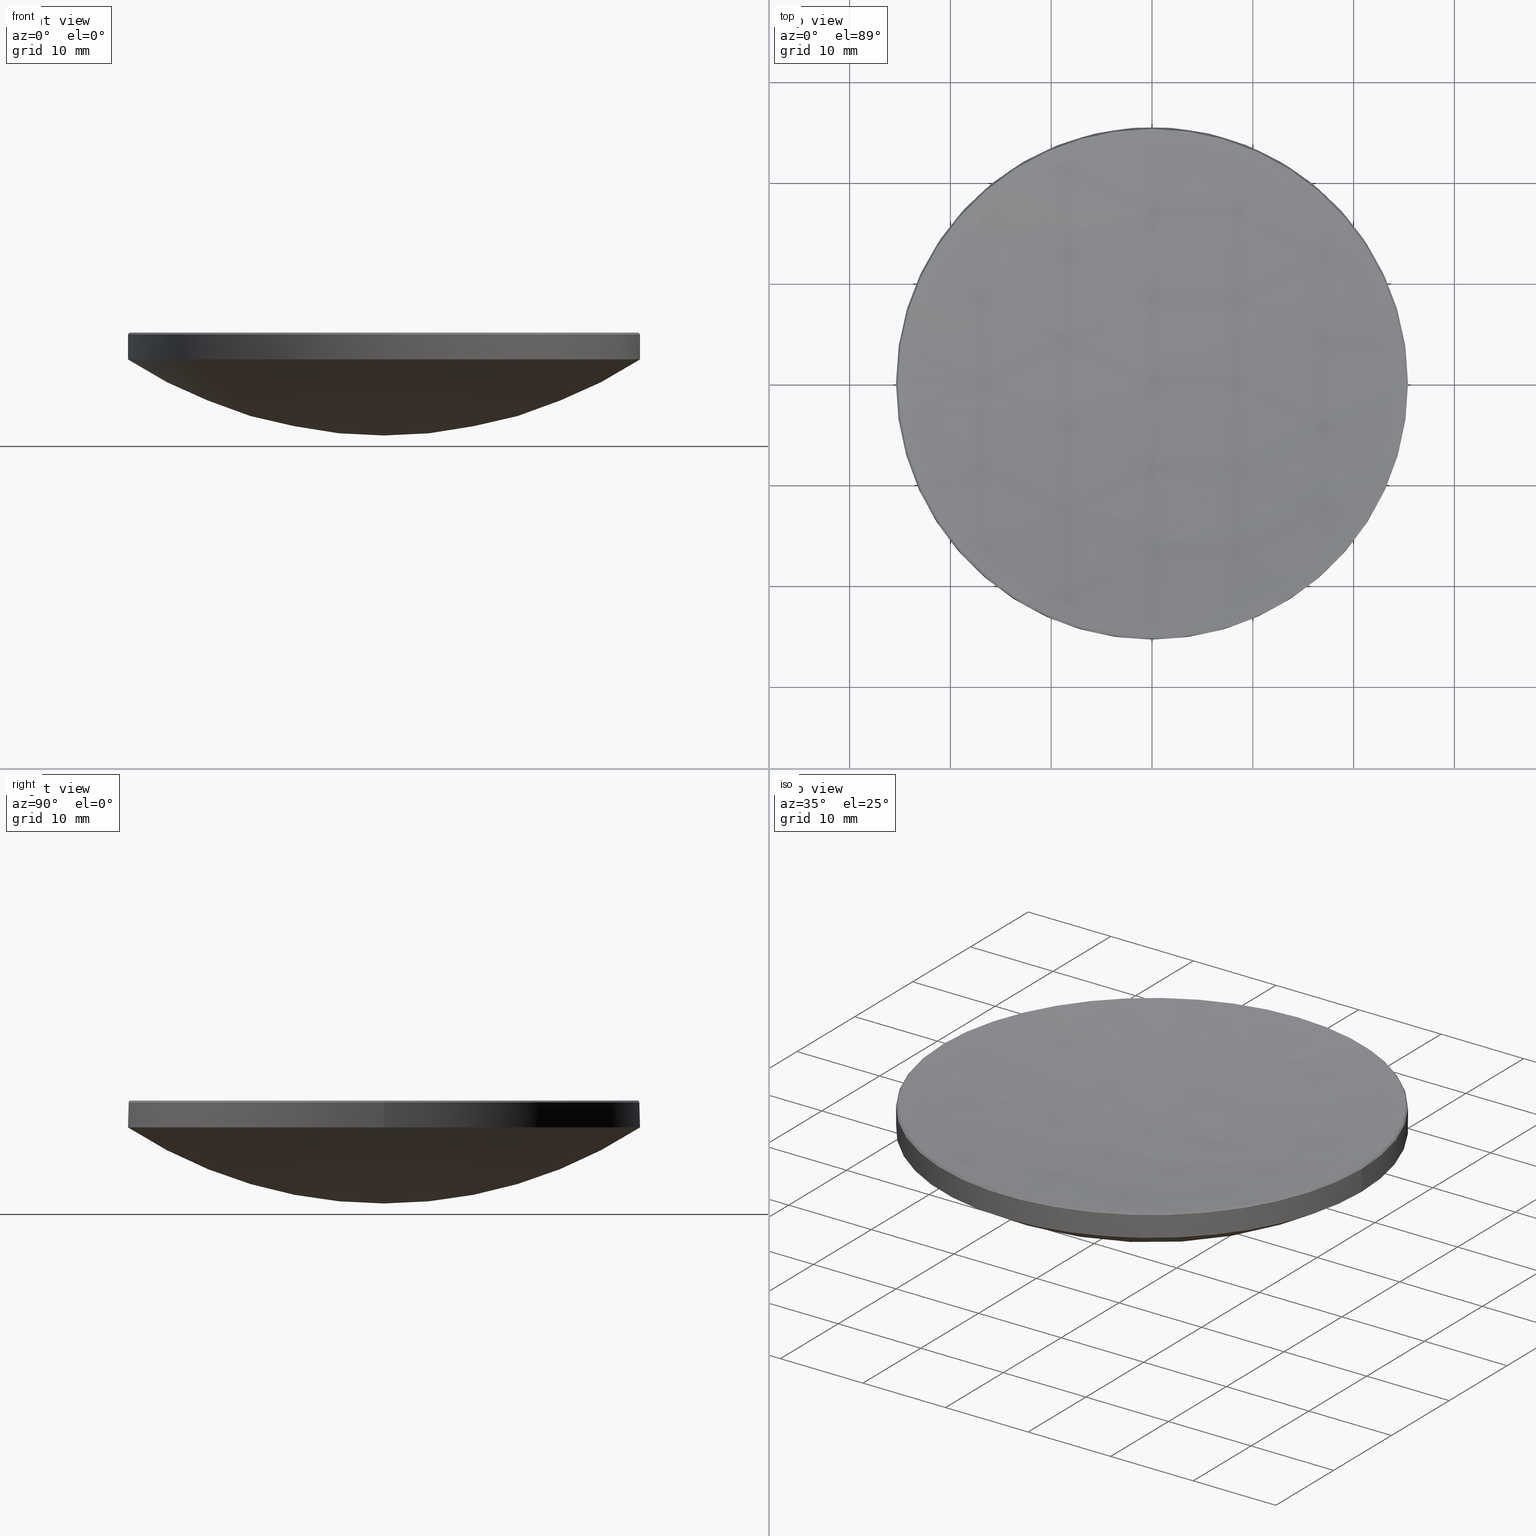
[diagram: canonical four-view strip — front | top / right | iso, engineering-drawing reading convention]
A machine part, canonical four-view strip (front | top / right | iso — engineering-drawing reading convention). The complete STEP part file that produces these views, byte-faithful:
ISO-10303-21;
HEADER;
FILE_DESCRIPTION (( 'STEP AP214' ),
    '1' );
FILE_NAME ('GLM2-050B-150.STEP',
    '2024-08-09T02:51:00',
    ( 'Windows User' ),
    ( 'P R C' ),
    'SwSTEP 2.0',
    'SolidWorks 2022',
    '' );
FILE_SCHEMA (( 'AUTOMOTIVE_DESIGN' ));
ENDSEC;

DATA;
#1 = AXIS2_PLACEMENT_3D ( 'NONE', #241, #237, #69 ) ;
#2 = EDGE_CURVE ( 'NONE', #258, #99, #243, .T. ) ;
#3 = SURFACE_SIDE_STYLE ('',( #173 ) ) ;
#4 = CARTESIAN_POINT ( 'NONE',  ( 0.000000000000000000, 0.000000000000000000, 20.00000000000000000 ) ) ;
#5 = ORIENTED_EDGE ( 'NONE', *, *, #36, .F. ) ;
#6 = VECTOR ( 'NONE', #245, 1000.000000000000000 ) ;
#7 = AXIS2_PLACEMENT_3D ( 'NONE', #8, #162, #33 ) ;
#8 = CARTESIAN_POINT ( 'NONE',  ( 0.000000000000000000, 0.000000000000000000, 17.66798998684060251 ) ) ;
#9 = ORIENTED_EDGE ( 'NONE', *, *, #92, .F. ) ;
#10 = CIRCLE ( 'NONE', #280, 25.23201001315934988 ) ;
#11 = CARTESIAN_POINT ( 'NONE',  ( 0.000000000000000000, 0.000000000000000000, 53.98564992404256913 ) ) ;
#12 = LINE ( 'NONE', #251, #269 ) ;
#13 = ORIENTED_EDGE ( 'NONE', *, *, #25, .F. ) ;
#14 = DIRECTION ( 'NONE',  ( 1.000000000000000000, 0.000000000000000000, 0.000000000000000000 ) ) ;
#15 = PRESENTATION_LAYER_ASSIGNMENT (  '', '', ( #265 ) ) ;
#16 = CIRCLE ( 'NONE', #257, 25.39999999999999503 ) ;
#17 = UNCERTAINTY_MEASURE_WITH_UNIT (LENGTH_MEASURE( 1.000000000000000082E-05 ), #168, 'distance_accuracy_value', 'NONE');
#18 = DIRECTION ( 'NONE',  ( -1.000000000000000000, 0.000000000000000000, 0.000000000000000000 ) ) ;
#19 = DIRECTION ( 'NONE',  ( 1.000000000000000000, 0.000000000000000000, 0.000000000000000000 ) ) ;
#20 = EDGE_CURVE ( 'NONE', #118, #208, #87, .T. ) ;
#21 = AXIS2_PLACEMENT_3D ( 'NONE', #53, #78, #98 ) ;
#22 = CARTESIAN_POINT ( 'NONE',  ( -25.23201001315934988, 0.000000000000000000, 17.66798998684057764 ) ) ;
#23 = ORIENTED_EDGE ( 'NONE', *, *, #172, .F. ) ;
#24 = CARTESIAN_POINT ( 'NONE',  ( 0.000000000000000000, 0.000000000000000000, 17.66798998684060251 ) ) ;
#25 = EDGE_CURVE ( 'NONE', #208, #144, #16, .T. ) ;
#26 = CYLINDRICAL_SURFACE ( 'NONE', #227, 25.39999999999999858 ) ;
#27 = PRODUCT ( 'GLM2-050B-150', 'GLM2-050B-150', '', ( #84 ) ) ;
#28 = CARTESIAN_POINT ( 'NONE',  ( 0.000000000000000000, 0.000000000000000000, 53.98564992404256913 ) ) ;
#29 = CIRCLE ( 'NONE', #112, 25.23201001315934988 ) ;
#30 = AXIS2_PLACEMENT_3D ( 'NONE', #252, #254, #59 ) ;
#31 =( NAMED_UNIT ( * ) PLANE_ANGLE_UNIT ( ) SI_UNIT ( $, .RADIAN. ) );
#32 = ORIENTED_EDGE ( 'NONE', *, *, #210, .F. ) ;
#33 = DIRECTION ( 'NONE',  ( 1.000000000000000000, 0.000000000000000000, 0.000000000000000000 ) ) ;
#34 = VERTEX_POINT ( 'NONE', #236 ) ;
#35 = ORIENTED_EDGE ( 'NONE', *, *, #204, .F. ) ;
#36 = EDGE_CURVE ( 'NONE', #144, #116, #131, .T. ) ;
#37 = SURFACE_STYLE_USAGE ( .BOTH. , #104 ) ;
#38 = CIRCLE ( 'NONE', #177, 25.39999999999999503 ) ;
#39 = EDGE_LOOP ( 'NONE', ( #178, #81, #211, #54, #9 ) ) ;
#40 = CARTESIAN_POINT ( 'NONE',  ( 25.39999999999999503, 3.110602869834276471E-15, 15.00000000000000000 ) ) ;
#41 = ORIENTED_EDGE ( 'NONE', *, *, #244, .T. ) ;
#42 =( NAMED_UNIT ( * ) PLANE_ANGLE_UNIT ( ) SI_UNIT ( $, .RADIAN. ) );
#43 = ADVANCED_FACE ( 'NONE', ( #46 ), #127, .T. ) ;
#44 = DIRECTION ( 'NONE',  ( 1.000000000000000000, 0.000000000000000000, 0.000000000000000000 ) ) ;
#45 = PRODUCT_DEFINITION_FORMATION_WITH_SPECIFIED_SOURCE ( '�κ�', '', #27, .NOT_KNOWN. ) ;
#46 = FACE_OUTER_BOUND ( 'NONE', #39, .T. ) ;
#47 = CIRCLE ( 'NONE', #156, 25.39999999999999503 ) ;
#48 = SPHERICAL_SURFACE ( 'NONE', #217, 135.2499999999999716 ) ;
#49 = CARTESIAN_POINT ( 'NONE',  ( 0.000000000000000000, 0.000000000000000000, 17.49999999999998934 ) ) ;
#50 = CARTESIAN_POINT ( 'NONE',  ( -25.39999999999999858, 0.000000000000000000, 20.00000000000000000 ) ) ;
#51 = PRODUCT_DEFINITION_SHAPE ( 'NONE', 'NONE',  #115 ) ;
#52 =( GEOMETRIC_REPRESENTATION_CONTEXT ( 3 ) GLOBAL_UNCERTAINTY_ASSIGNED_CONTEXT ( ( #17 ) ) GLOBAL_UNIT_ASSIGNED_CONTEXT ( ( #168, #42, #213 ) ) REPRESENTATION_CONTEXT ( 'NONE', 'WORKASPACE' ) );
#53 = CARTESIAN_POINT ( 'NONE',  ( 0.000000000000000000, 0.000000000000000000, 150.5435263759585780 ) ) ;
#54 = ORIENTED_EDGE ( 'NONE', *, *, #36, .T. ) ;
#55 = CONICAL_SURFACE ( 'NONE', #149, 25.23201001315934988, 0.7853981633976238053 ) ;
#56 = ORIENTED_EDGE ( 'NONE', *, *, #194, .F. ) ;
#57 = DIRECTION ( 'NONE',  ( -1.000000000000000000, 1.224646799147353207E-16, 0.000000000000000000 ) ) ;
#58 = CARTESIAN_POINT ( 'NONE',  ( 0.000000000000000000, 0.000000000000000000, 150.5435263759585780 ) ) ;
#59 = DIRECTION ( 'NONE',  ( 0.000000000000000000, 1.000000000000000000, 0.000000000000000000 ) ) ;
#60 = EDGE_LOOP ( 'NONE', ( #35, #161, #75, #206 ) ) ;
#61 = FACE_OUTER_BOUND ( 'NONE', #142, .T. ) ;
#62 = AXIS2_PLACEMENT_3D ( 'NONE', #117, #231, #14 ) ;
#63 = EDGE_CURVE ( 'NONE', #147, #137, #29, .T. ) ;
#64 = ORIENTED_EDGE ( 'NONE', *, *, #63, .T. ) ;
#65 = APPLICATION_CONTEXT ( 'automotive_design' ) ;
#66 = APPLICATION_PROTOCOL_DEFINITION ( 'draft international standard', 'automotive_design', 1998, #65 ) ;
#67 = DIRECTION ( 'NONE',  ( -1.000000000000000000, 0.000000000000000000, 0.000000000000000000 ) ) ;
#68 = ADVANCED_FACE ( 'NONE', ( #264 ), #190, .F. ) ;
#69 = DIRECTION ( 'NONE',  ( 1.000000000000000000, 0.000000000000000000, 0.000000000000000000 ) ) ;
#70 = DIRECTION ( 'NONE',  ( 0.000000000000000000, 1.000000000000000000, 0.000000000000000000 ) ) ;
#71 = CIRCLE ( 'NONE', #278, 46.53000000000000114 ) ;
#72 = DIRECTION ( 'NONE',  ( -0.000000000000000000, -0.000000000000000000, -1.000000000000000000 ) ) ;
#73 = CIRCLE ( 'NONE', #62, 25.39999999999999858 ) ;
#74 = DIRECTION ( 'NONE',  ( -1.000000000000000000, 0.000000000000000000, 0.000000000000000000 ) ) ;
#75 = ORIENTED_EDGE ( 'NONE', *, *, #268, .T. ) ;
#76 = CLOSED_SHELL ( 'NONE', ( #281, #88, #154, #43, #132, #224, #68, #150 ) ) ;
#77 = EDGE_CURVE ( 'NONE', #83, #144, #71, .T. ) ;
#78 = DIRECTION ( 'NONE',  ( -1.000000000000000000, 1.224646799147353207E-16, 0.000000000000000000 ) ) ;
#79 = EDGE_LOOP ( 'NONE', ( #272, #230, #276, #140, #121 ) ) ;
#80 = PRESENTATION_STYLE_ASSIGNMENT (( #37 ) ) ;
#81 = ORIENTED_EDGE ( 'NONE', *, *, #20, .T. ) ;
#82 = CARTESIAN_POINT ( 'NONE',  ( 0.000000000000000000, 8.281673979233975438E-15, 15.29352637595859932 ) ) ;
#83 = VERTEX_POINT ( 'NONE', #109 ) ;
#84 = PRODUCT_CONTEXT ( 'NONE', #215, 'mechanical' ) ;
#85 = AXIS2_PLACEMENT_3D ( 'NONE', #160, #271, #205 ) ;
#86 = ORIENTED_EDGE ( 'NONE', *, *, #204, .T. ) ;
#87 = LINE ( 'NONE', #212, #138 ) ;
#88 = ADVANCED_FACE ( 'NONE', ( #192 ), #48, .F. ) ;
#89 = AXIS2_PLACEMENT_3D ( 'NONE', #107, #259, #67 ) ;
#90 = PRODUCT_DEFINITION_CONTEXT ( 'detailed design', #65, 'design' ) ;
#91 = DIRECTION ( 'NONE',  ( -0.000000000000000000, -0.000000000000000000, 1.000000000000000000 ) ) ;
#92 = EDGE_CURVE ( 'NONE', #202, #116, #220, .T. ) ;
#93 = DIRECTION ( 'NONE',  ( -0.7071067811866716957, 0.000000000000000000, -0.7071067811864233388 ) ) ;
#94 = AXIS2_PLACEMENT_3D ( 'NONE', #49, #129, #221 ) ;
#95 = CARTESIAN_POINT ( 'NONE',  ( 25.39999999999999858, 3.110602869834276865E-15, 17.49999999999998934 ) ) ;
#96 = CARTESIAN_POINT ( 'NONE',  ( 0.000000000000000000, 25.39999999999999858, 15.00000000000000000 ) ) ;
#97 = AXIS2_PLACEMENT_3D ( 'NONE', #143, #146, #74 ) ;
#98 = DIRECTION ( 'NONE',  ( -1.224646799147353454E-16, -1.000000000000000000, 0.000000000000000000 ) ) ;
#99 = VERTEX_POINT ( 'NONE', #196 ) ;
#100 = AXIS2_PLACEMENT_3D ( 'NONE', #28, #114, #266 ) ;
#101 = FILL_AREA_STYLE_COLOUR ( '', #226 ) ;
#102 = ORIENTED_EDGE ( 'NONE', *, *, #244, .F. ) ;
#103 = SPHERICAL_SURFACE ( 'NONE', #30, 46.53000000000000114 ) ;
#104 = SURFACE_SIDE_STYLE ('',( #274 ) ) ;
#105 = ORIENTED_EDGE ( 'NONE', *, *, #262, .F. ) ;
#106 = VECTOR ( 'NONE', #93, 1000.000000000000000 ) ;
#107 = CARTESIAN_POINT ( 'NONE',  ( 0.000000000000000000, 0.000000000000000000, 20.00000000000000000 ) ) ;
#108 = DIRECTION ( 'NONE',  ( -0.000000000000000000, -0.000000000000000000, 1.000000000000000000 ) ) ;
#109 = CARTESIAN_POINT ( 'NONE',  ( 0.000000000000000000, 2.849140778216317103E-15, 7.455649924042566212 ) ) ;
#110 = CARTESIAN_POINT ( 'NONE',  ( -25.39999999999999503, 0.000000000000000000, 15.00000000000000000 ) ) ;
#111 =( NAMED_UNIT ( * ) PLANE_ANGLE_UNIT ( ) SI_UNIT ( $, .RADIAN. ) );
#112 = AXIS2_PLACEMENT_3D ( 'NONE', #216, #108, #124 ) ;
#113 = DIRECTION ( 'NONE',  ( 0.000000000000000000, 0.000000000000000000, -1.000000000000000000 ) ) ;
#114 = DIRECTION ( 'NONE',  ( -1.000000000000000000, 0.000000000000000000, 0.000000000000000000 ) ) ;
#115 = PRODUCT_DEFINITION ( 'δ֪', '', #45, #90 ) ;
#116 = VERTEX_POINT ( 'NONE', #110 ) ;
#117 = CARTESIAN_POINT ( 'NONE',  ( 0.000000000000000000, 0.000000000000000000, 17.49999999999998934 ) ) ;
#118 = VERTEX_POINT ( 'NONE', #95 ) ;
#119 = EDGE_LOOP ( 'NONE', ( #102, #203, #13, #32 ) ) ;
#120 = FACE_OUTER_BOUND ( 'NONE', #119, .T. ) ;
#121 = ORIENTED_EDGE ( 'NONE', *, *, #210, .T. ) ;
#122 = CARTESIAN_POINT ( 'NONE',  ( 0.000000000000000000, 0.000000000000000000, 15.00000000000000000 ) ) ;
#123 = ORIENTED_EDGE ( 'NONE', *, *, #183, .F. ) ;
#124 = DIRECTION ( 'NONE',  ( 1.000000000000000000, 0.000000000000000000, 0.000000000000000000 ) ) ;
#125 = MECHANICAL_DESIGN_GEOMETRIC_PRESENTATION_REPRESENTATION (  '', ( #250 ), #222 ) ;
#126 = CARTESIAN_POINT ( 'NONE',  ( 0.000000000000000000, 0.000000000000000000, 15.00000000000000000 ) ) ;
#127 = CYLINDRICAL_SURFACE ( 'NONE', #89, 25.39999999999999858 ) ;
#128 = DIRECTION ( 'NONE',  ( -1.000000000000000000, 0.000000000000000000, 0.000000000000000000 ) ) ;
#129 = DIRECTION ( 'NONE',  ( 0.000000000000000000, 0.000000000000000000, -1.000000000000000000 ) ) ;
#130 = CARTESIAN_POINT ( 'NONE',  ( 25.23201001315934988, 3.100316449850616276E-15, 17.66798998684060251 ) ) ;
#131 = CIRCLE ( 'NONE', #170, 25.39999999999999503 ) ;
#132 = ADVANCED_FACE ( 'NONE', ( #134 ), #26, .T. ) ;
#133 = FACE_OUTER_BOUND ( 'NONE', #165, .T. ) ;
#134 = FACE_OUTER_BOUND ( 'NONE', #79, .T. ) ;
#135 = MECHANICAL_DESIGN_GEOMETRIC_PRESENTATION_REPRESENTATION (  '', ( #265 ), #52 ) ;
#136 = EDGE_CURVE ( 'NONE', #180, #202, #157, .T. ) ;
#137 = VERTEX_POINT ( 'NONE', #130 ) ;
#138 = VECTOR ( 'NONE', #238, 1000.000000000000000 ) ;
#139 = APPLICATION_PROTOCOL_DEFINITION ( 'draft international standard', 'automotive_design', 1998, #215 ) ;
#140 = ORIENTED_EDGE ( 'NONE', *, *, #239, .T. ) ;
#141 = DIRECTION ( 'NONE',  ( -1.224646799147353207E-16, -1.000000000000000000, 0.000000000000000000 ) ) ;
#142 = EDGE_LOOP ( 'NONE', ( #123, #233, #23, #185, #279 ) ) ;
#143 = CARTESIAN_POINT ( 'NONE',  ( 0.000000000000000000, 0.000000000000000000, 17.66798998684057764 ) ) ;
#144 = VERTEX_POINT ( 'NONE', #96 ) ;
#145 = CIRCLE ( 'NONE', #85, 25.23201001315934988 ) ;
#146 = DIRECTION ( 'NONE',  ( 0.000000000000000000, 0.000000000000000000, -1.000000000000000000 ) ) ;
#147 = VERTEX_POINT ( 'NONE', #270 ) ;
#148 = DIRECTION ( 'NONE',  ( 1.000000000000000000, -0.000000000000000000, 0.000000000000000000 ) ) ;
#149 = AXIS2_PLACEMENT_3D ( 'NONE', #223, #113, #128 ) ;
#150 = ADVANCED_FACE ( 'NONE', ( #133 ), #55, .T. ) ;
#151 = AXIS2_PLACEMENT_3D ( 'NONE', #58, #19, #189 ) ;
#152 = PRESENTATION_STYLE_ASSIGNMENT (( #247 ) ) ;
#153 = CIRCLE ( 'NONE', #21, 135.2499999999999716 ) ;
#154 = ADVANCED_FACE ( 'NONE', ( #198 ), #225, .T. ) ;
#155 =( LENGTH_UNIT ( ) NAMED_UNIT ( * ) SI_UNIT ( .MILLI., .METRE. ) );
#156 = AXIS2_PLACEMENT_3D ( 'NONE', #179, #248, #228 ) ;
#157 = LINE ( 'NONE', #22, #106 ) ;
#158 = ORIENTED_EDGE ( 'NONE', *, *, #77, .F. ) ;
#159 = CARTESIAN_POINT ( 'NONE',  ( -25.39999999999999858, 0.000000000000000000, 17.49999999999998934 ) ) ;
#160 = CARTESIAN_POINT ( 'NONE',  ( 0.000000000000000000, 0.000000000000000000, 17.66798998684060251 ) ) ;
#161 = ORIENTED_EDGE ( 'NONE', *, *, #2, .T. ) ;
#162 = DIRECTION ( 'NONE',  ( -0.000000000000000000, -0.000000000000000000, 1.000000000000000000 ) ) ;
#163 = ORIENTED_EDGE ( 'NONE', *, *, #136, .T. ) ;
#164 = AXIS2_PLACEMENT_3D ( 'NONE', #11, #57, #141 ) ;
#165 = EDGE_LOOP ( 'NONE', ( #235, #187, #56, #163, #105 ) ) ;
#166 = UNCERTAINTY_MEASURE_WITH_UNIT (LENGTH_MEASURE( 1.000000000000000082E-05 ), #232, 'distance_accuracy_value', 'NONE');
#167 = DIRECTION ( 'NONE',  ( -0.000000000000000000, -0.000000000000000000, 1.000000000000000000 ) ) ;
#168 =( LENGTH_UNIT ( ) NAMED_UNIT ( * ) SI_UNIT ( .MILLI., .METRE. ) );
#169 = DIRECTION ( 'NONE',  ( 1.000000000000000000, 0.000000000000000000, 0.000000000000000000 ) ) ;
#170 = AXIS2_PLACEMENT_3D ( 'NONE', #240, #167, #44 ) ;
#171 = DIRECTION ( 'NONE',  ( 0.000000000000000000, 1.000000000000000000, 0.000000000000000000 ) ) ;
#172 = EDGE_CURVE ( 'NONE', #202, #118, #182, .T. ) ;
#173 = SURFACE_STYLE_FILL_AREA ( #174 ) ;
#174 = FILL_AREA_STYLE ('',( #199 ) ) ;
#175 = AXIS2_PLACEMENT_3D ( 'NONE', #214, #18, #70 ) ;
#176 = DIRECTION ( 'NONE',  ( -1.000000000000000000, 0.000000000000000000, 0.000000000000000000 ) ) ;
#177 = AXIS2_PLACEMENT_3D ( 'NONE', #122, #201, #186 ) ;
#178 = ORIENTED_EDGE ( 'NONE', *, *, #172, .T. ) ;
#179 = CARTESIAN_POINT ( 'NONE',  ( 0.000000000000000000, 0.000000000000000000, 15.00000000000000000 ) ) ;
#180 = VERTEX_POINT ( 'NONE', #197 ) ;
#181 = MANIFOLD_SOLID_BREP ( '����1', #76 ) ;
#182 = CIRCLE ( 'NONE', #94, 25.39999999999999858 ) ;
#183 = EDGE_CURVE ( 'NONE', #137, #99, #10, .T. ) ;
#184 = FILL_AREA_STYLE ('',( #101 ) ) ;
#185 = ORIENTED_EDGE ( 'NONE', *, *, #136, .F. ) ;
#186 = DIRECTION ( 'NONE',  ( 1.000000000000000000, 0.000000000000000000, 0.000000000000000000 ) ) ;
#187 = ORIENTED_EDGE ( 'NONE', *, *, #63, .F. ) ;
#188 = SHAPE_DEFINITION_REPRESENTATION ( #51, #260 ) ;
#189 = DIRECTION ( 'NONE',  ( 0.000000000000000000, 0.000000000000000000, -1.000000000000000000 ) ) ;
#190 = SPHERICAL_SURFACE ( 'NONE', #175, 135.2499999999999716 ) ;
#191 = CIRCLE ( 'NONE', #164, 46.53000000000000114 ) ;
#192 = FACE_OUTER_BOUND ( 'NONE', #249, .T. ) ;
#193 = DIRECTION ( 'NONE',  ( -1.000000000000000000, 0.000000000000000000, 0.000000000000000000 ) ) ;
#194 = EDGE_CURVE ( 'NONE', #180, #147, #145, .T. ) ;
#195 = COLOUR_RGB ( '',1.000000000000000000, 1.000000000000000000, 1.000000000000000000 ) ;
#196 = CARTESIAN_POINT ( 'NONE',  ( 0.000000000000000000, 25.23201001315939607, 17.66798998684061672 ) ) ;
#197 = CARTESIAN_POINT ( 'NONE',  ( -25.23201001315934988, 0.000000000000000000, 17.66798998684060251 ) ) ;
#198 = FACE_OUTER_BOUND ( 'NONE', #273, .T. ) ;
#199 = FILL_AREA_STYLE_COLOUR ( '', #195 ) ;
#200 = CONICAL_SURFACE ( 'NONE', #97, 25.23201001315934988, 0.7853981633976238053 ) ;
#201 = DIRECTION ( 'NONE',  ( -0.000000000000000000, -0.000000000000000000, 1.000000000000000000 ) ) ;
#202 = VERTEX_POINT ( 'NONE', #159 ) ;
#203 = ORIENTED_EDGE ( 'NONE', *, *, #77, .T. ) ;
#204 = EDGE_CURVE ( 'NONE', #258, #147, #153, .T. ) ;
#205 = DIRECTION ( 'NONE',  ( 1.000000000000000000, 0.000000000000000000, 0.000000000000000000 ) ) ;
#206 = ORIENTED_EDGE ( 'NONE', *, *, #194, .T. ) ;
#207 = DIRECTION ( 'NONE',  ( -0.000000000000000000, -0.000000000000000000, 1.000000000000000000 ) ) ;
#208 = VERTEX_POINT ( 'NONE', #40 ) ;
#209 =( NAMED_UNIT ( * ) SI_UNIT ( $, .STERADIAN. ) SOLID_ANGLE_UNIT ( ) );
#210 = EDGE_CURVE ( 'NONE', #34, #208, #47, .T. ) ;
#211 = ORIENTED_EDGE ( 'NONE', *, *, #25, .T. ) ;
#212 = CARTESIAN_POINT ( 'NONE',  ( 25.39999999999999858, 3.110602869834276865E-15, 20.00000000000000000 ) ) ;
#213 =( NAMED_UNIT ( * ) SI_UNIT ( $, .STERADIAN. ) SOLID_ANGLE_UNIT ( ) );
#214 = CARTESIAN_POINT ( 'NONE',  ( 0.000000000000000000, 0.000000000000000000, 150.5435263759585780 ) ) ;
#215 = APPLICATION_CONTEXT ( 'automotive_design' ) ;
#216 = CARTESIAN_POINT ( 'NONE',  ( 0.000000000000000000, 0.000000000000000000, 17.66798998684060251 ) ) ;
#217 = AXIS2_PLACEMENT_3D ( 'NONE', #246, #193, #171 ) ;
#218 =( GEOMETRIC_REPRESENTATION_CONTEXT ( 3 ) GLOBAL_UNCERTAINTY_ASSIGNED_CONTEXT ( ( #166 ) ) GLOBAL_UNIT_ASSIGNED_CONTEXT ( ( #232, #31, #209 ) ) REPRESENTATION_CONTEXT ( 'NONE', 'WORKASPACE' ) );
#219 = DIRECTION ( 'NONE',  ( 0.000000000000000000, 0.000000000000000000, -1.000000000000000000 ) ) ;
#220 = LINE ( 'NONE', #50, #6 ) ;
#221 = DIRECTION ( 'NONE',  ( 1.000000000000000000, 0.000000000000000000, 0.000000000000000000 ) ) ;
#222 =( GEOMETRIC_REPRESENTATION_CONTEXT ( 3 ) GLOBAL_UNCERTAINTY_ASSIGNED_CONTEXT ( ( #261 ) ) GLOBAL_UNIT_ASSIGNED_CONTEXT ( ( #155, #111, #267 ) ) REPRESENTATION_CONTEXT ( 'NONE', 'WORKASPACE' ) );
#223 = CARTESIAN_POINT ( 'NONE',  ( 0.000000000000000000, 0.000000000000000000, 17.66798998684057764 ) ) ;
#224 = ADVANCED_FACE ( 'NONE', ( #120 ), #103, .T. ) ;
#225 = SPHERICAL_SURFACE ( 'NONE', #100, 46.53000000000000114 ) ;
#226 = COLOUR_RGB ( '',1.000000000000000000, 1.000000000000000000, 1.000000000000000000 ) ;
#227 = AXIS2_PLACEMENT_3D ( 'NONE', #4, #72, #176 ) ;
#228 = DIRECTION ( 'NONE',  ( 1.000000000000000000, 0.000000000000000000, 0.000000000000000000 ) ) ;
#229 = ORIENTED_EDGE ( 'NONE', *, *, #183, .T. ) ;
#230 = ORIENTED_EDGE ( 'NONE', *, *, #262, .T. ) ;
#231 = DIRECTION ( 'NONE',  ( 0.000000000000000000, 0.000000000000000000, -1.000000000000000000 ) ) ;
#232 =( LENGTH_UNIT ( ) NAMED_UNIT ( * ) SI_UNIT ( .MILLI., .METRE. ) );
#233 = ORIENTED_EDGE ( 'NONE', *, *, #275, .T. ) ;
#234 = CIRCLE ( 'NONE', #7, 25.23201001315934988 ) ;
#235 = ORIENTED_EDGE ( 'NONE', *, *, #275, .F. ) ;
#236 = CARTESIAN_POINT ( 'NONE',  ( -3.110602869834276471E-15, -25.39999999999999858, 15.00000000000000000 ) ) ;
#237 = DIRECTION ( 'NONE',  ( 0.000000000000000000, 0.000000000000000000, 1.000000000000000000 ) ) ;
#238 = DIRECTION ( 'NONE',  ( -0.000000000000000000, -0.000000000000000000, -1.000000000000000000 ) ) ;
#239 = EDGE_CURVE ( 'NONE', #116, #34, #38, .T. ) ;
#240 = CARTESIAN_POINT ( 'NONE',  ( 0.000000000000000000, 0.000000000000000000, 15.00000000000000000 ) ) ;
#241 = CARTESIAN_POINT ( 'NONE',  ( 0.000000000000000000, 0.000000000000000000, 0.000000000000000000 ) ) ;
#242 = CARTESIAN_POINT ( 'NONE',  ( 0.000000000000000000, 0.000000000000000000, 53.98564992404256913 ) ) ;
#243 = CIRCLE ( 'NONE', #151, 135.2499999999999716 ) ;
#244 = EDGE_CURVE ( 'NONE', #83, #34, #191, .T. ) ;
#245 = DIRECTION ( 'NONE',  ( -0.000000000000000000, -0.000000000000000000, -1.000000000000000000 ) ) ;
#246 = CARTESIAN_POINT ( 'NONE',  ( 0.000000000000000000, 0.000000000000000000, 150.5435263759585780 ) ) ;
#247 = SURFACE_STYLE_USAGE ( .BOTH. , #3 ) ;
#248 = DIRECTION ( 'NONE',  ( -0.000000000000000000, -0.000000000000000000, 1.000000000000000000 ) ) ;
#249 = EDGE_LOOP ( 'NONE', ( #253, #86, #64, #229 ) ) ;
#250 = STYLED_ITEM ( 'NONE', ( #152 ), #181 ) ;
#251 = CARTESIAN_POINT ( 'NONE',  ( 25.23201001315934988, 3.090030029866955686E-15, 17.66798998684057764 ) ) ;
#252 = CARTESIAN_POINT ( 'NONE',  ( 0.000000000000000000, 0.000000000000000000, 53.98564992404256913 ) ) ;
#253 = ORIENTED_EDGE ( 'NONE', *, *, #2, .F. ) ;
#254 = DIRECTION ( 'NONE',  ( -1.000000000000000000, 0.000000000000000000, 0.000000000000000000 ) ) ;
#255 = ORIENTED_EDGE ( 'NONE', *, *, #239, .F. ) ;
#256 = DIRECTION ( 'NONE',  ( 0.7071067811866716957, 8.659560562356452648E-17, -0.7071067811864233388 ) ) ;
#257 = AXIS2_PLACEMENT_3D ( 'NONE', #126, #91, #169 ) ;
#258 = VERTEX_POINT ( 'NONE', #82 ) ;
#259 = DIRECTION ( 'NONE',  ( -0.000000000000000000, -0.000000000000000000, -1.000000000000000000 ) ) ;
#260 = ADVANCED_BREP_SHAPE_REPRESENTATION ( 'GLM2-050B-150', ( #181, #1 ), #218 ) ;
#261 = UNCERTAINTY_MEASURE_WITH_UNIT (LENGTH_MEASURE( 1.000000000000000082E-05 ), #155, 'distance_accuracy_value', 'NONE');
#262 = EDGE_CURVE ( 'NONE', #118, #202, #73, .T. ) ;
#263 = PRESENTATION_LAYER_ASSIGNMENT (  '', '', ( #250 ) ) ;
#264 = FACE_OUTER_BOUND ( 'NONE', #60, .T. ) ;
#265 = STYLED_ITEM ( 'NONE', ( #80 ), #260 ) ;
#266 = DIRECTION ( 'NONE',  ( 0.000000000000000000, 1.000000000000000000, 0.000000000000000000 ) ) ;
#267 =( NAMED_UNIT ( * ) SI_UNIT ( $, .STERADIAN. ) SOLID_ANGLE_UNIT ( ) );
#268 = EDGE_CURVE ( 'NONE', #99, #180, #234, .T. ) ;
#269 = VECTOR ( 'NONE', #256, 1000.000000000000000 ) ;
#270 = CARTESIAN_POINT ( 'NONE',  ( -3.090030029866962391E-15, -25.23201001315939607, 17.66798998684061672 ) ) ;
#271 = DIRECTION ( 'NONE',  ( -0.000000000000000000, -0.000000000000000000, 1.000000000000000000 ) ) ;
#272 = ORIENTED_EDGE ( 'NONE', *, *, #20, .F. ) ;
#273 = EDGE_LOOP ( 'NONE', ( #158, #41, #255, #5 ) ) ;
#274 = SURFACE_STYLE_FILL_AREA ( #184 ) ;
#275 = EDGE_CURVE ( 'NONE', #137, #118, #12, .T. ) ;
#276 = ORIENTED_EDGE ( 'NONE', *, *, #92, .T. ) ;
#277 = DIRECTION ( 'NONE',  ( 1.000000000000000000, 0.000000000000000000, 0.000000000000000000 ) ) ;
#278 = AXIS2_PLACEMENT_3D ( 'NONE', #242, #148, #219 ) ;
#279 = ORIENTED_EDGE ( 'NONE', *, *, #268, .F. ) ;
#280 = AXIS2_PLACEMENT_3D ( 'NONE', #24, #207, #277 ) ;
#281 = ADVANCED_FACE ( 'NONE', ( #61 ), #200, .T. ) ;
#282 = PRODUCT_RELATED_PRODUCT_CATEGORY ( 'part', '', ( #27 ) ) ;
ENDSEC;
END-ISO-10303-21;
